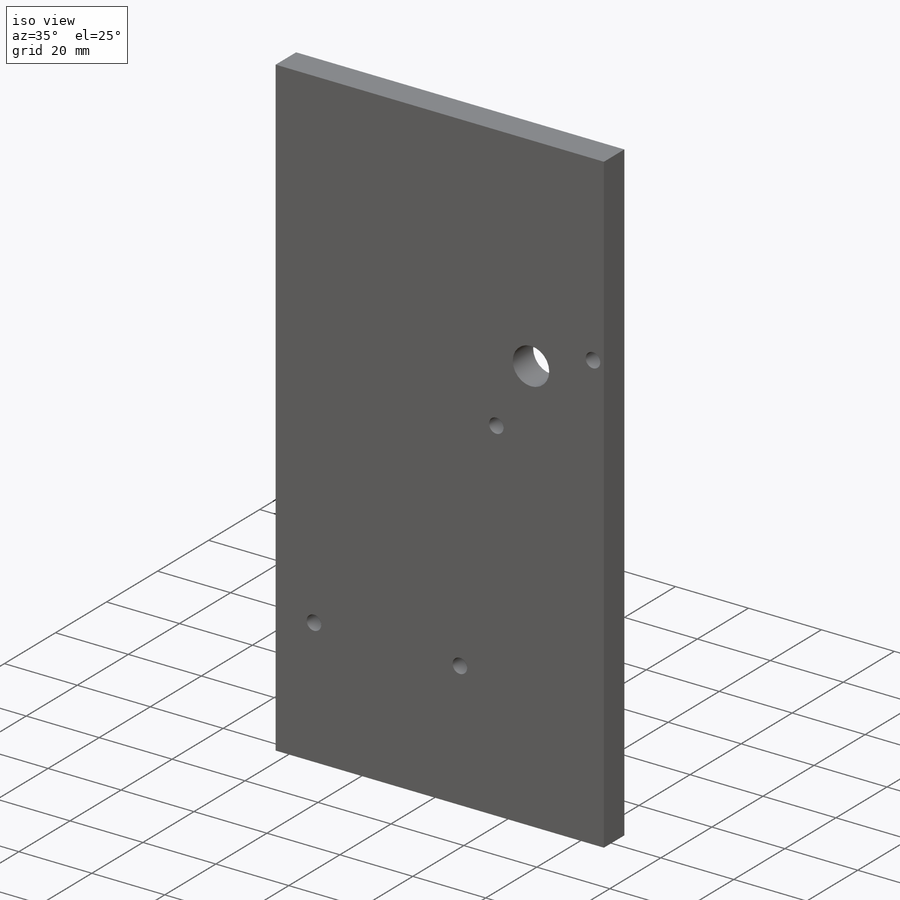
[diagram: iso view]
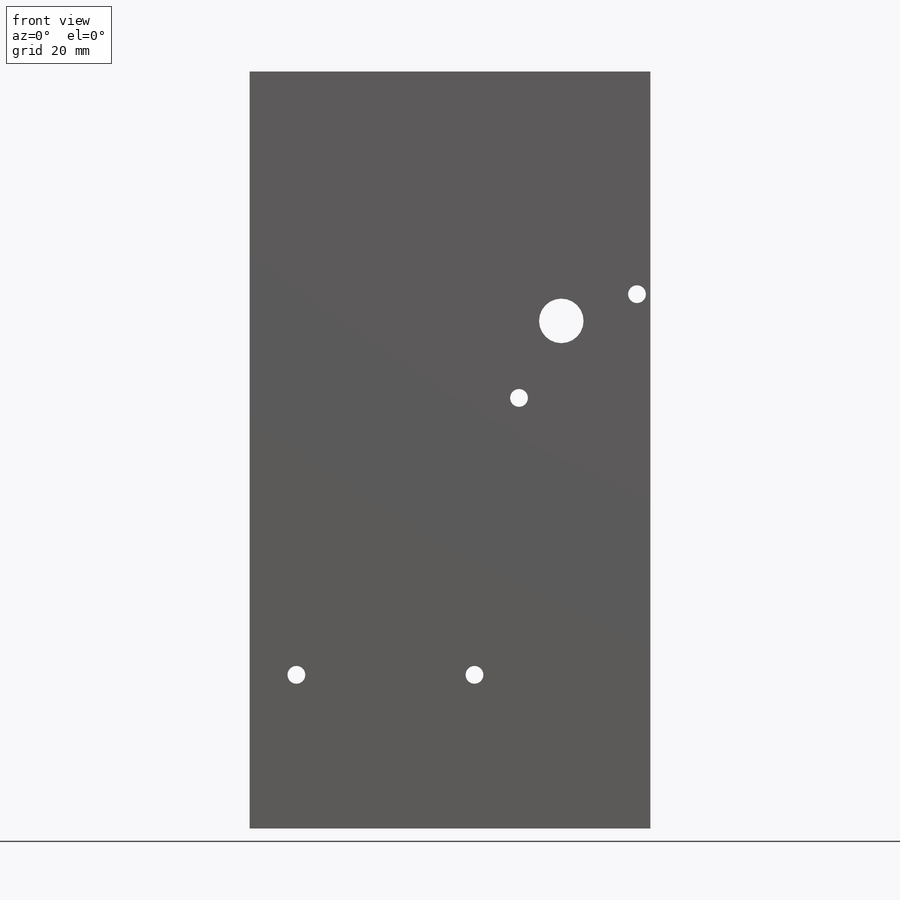
[diagram: front view]
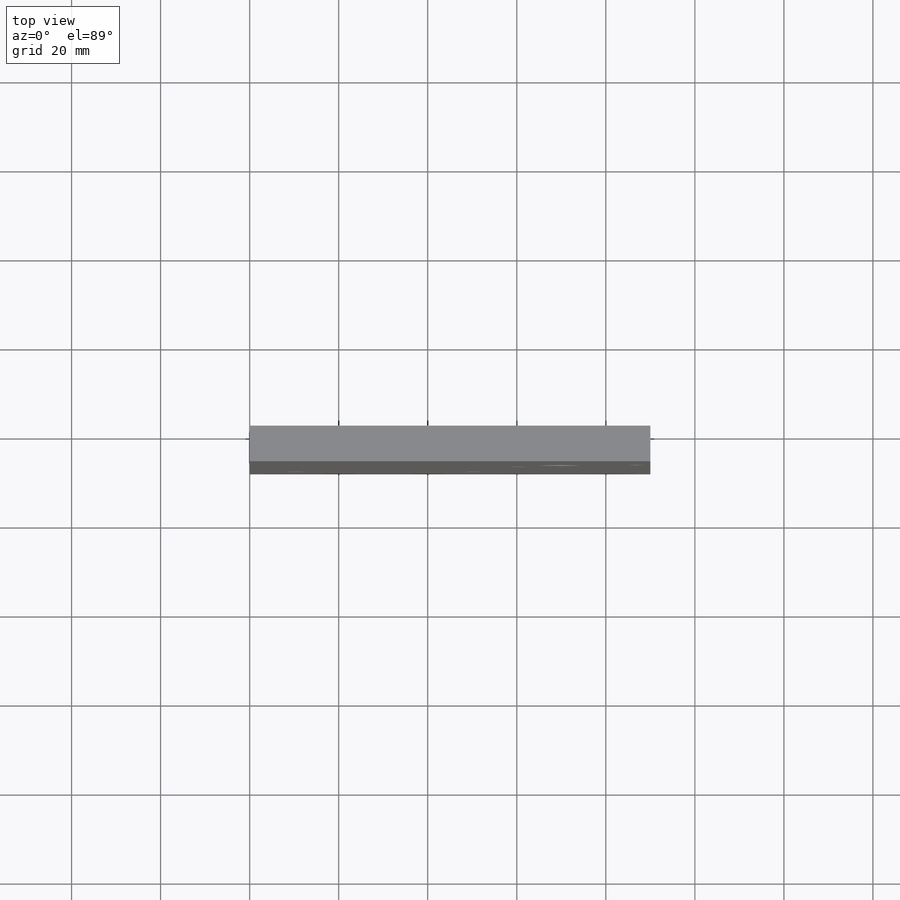
[diagram: top view]
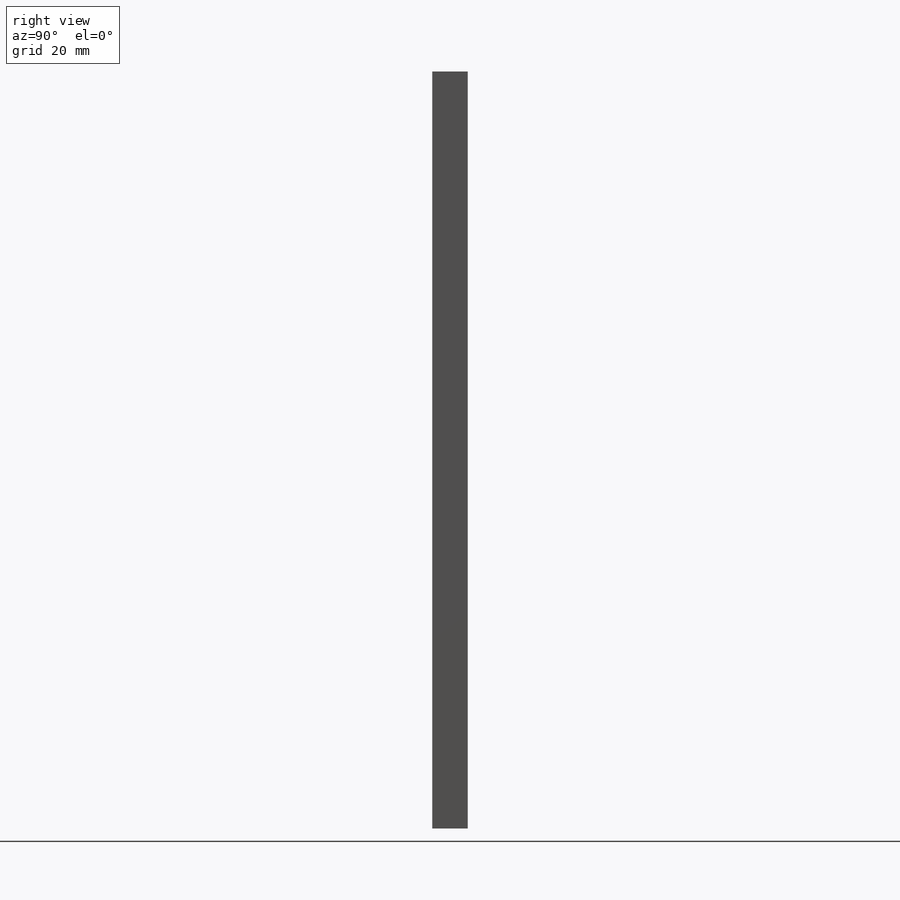
[diagram: right view]
SOLIDWORKS PART (.sldprt)
format: sldprt  version: not decoded by parser v0  size: 183,808 bytes
history: native  units: mm
features: sketch x4, cut_extrude x3, plane x2, material x1, extrude x1 (+11 scaffold rows collapsed)
feature tree (22):
  scaffold x11  (default folders/planes/origin — collapsed)
  material  "Material <not specified>"
  sketch  "Sketch1"  dims[D1=90.0mm D2=120.0mm]
  extrude  "Boss-Extrude1"  Depth=8mm
  sketch  "Sketch2"  dims[c1.D1=10.0mm c1.D2=10.0mm c2.D1=20.0mm c2.D2=56.0mm]
  cut_extrude  "Cut-Extrude1"  [1 undecoded]
  sketch  "Sketch3"  dims[c1.D1=4.0mm c1.D2=4.0mm c1.D3=10.0mm c1.D4=10.0mm c1.D5=4.0mm c2.D2=17.0mm c2.D3=17.3mm c2.D4=9.5mm c2.D5=6.0mm]
  cut_extrude  "Cut-Extrude2"  [1 undecoded]
  plane  "Plane1"  Offset=9mm
  plane  "Plane2"  Offset=10mm
  sketch  "Sketch4"  dims[D1=~1.096877mm]
  cut_extrude  "Cut-Extrude3"  [1 undecoded]
decode coverage: 5 of 8 modeling features carry decoded parameters
note: ~ marks probable driven/reference dimensions
note: 3 parameter values undecoded
summary: no parameter record found for 3 features
note: suppression state not decoded; provenance and decode notes live in map.json
